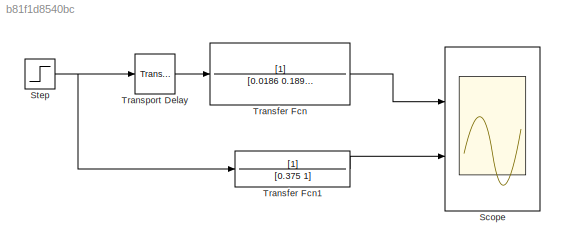
MODEL slx_b81f1d8540bc
KIND model
CONFIG AbsTol = auto
CONFIG EnableMultiTasking = off
CONFIG FixedStep = 1e-2
CONFIG MaxStep = auto
CONFIG MinStep = auto
CONFIG RelTol = 1e-3
CONFIG SampleTimeConstraint = Unconstrained
CONFIG Solver = FixedStepAuto
CONFIG SolverName = FixedStepAuto
CONFIG StartTime = 0.0
CONFIG StopTime = 10.0
BLOCK [Scope] Scope
  NumInputPorts = 2
  Ports = [2]
  ScopeSpecificationString = Simulink.scopes.TimeScopeBlockCfg('CurrentConfiguration', extmgr.ConfigurationSet(extmgr.Configuration('Core','General UI',true),extmgr.Configuration('Core','Source UI',true),extmgr.Configuration('Sources','WiredSimulink',true),extmgr.Configuration('Visuals','Time Domain',true,'SerializedDisplays',{struct('MinYLimReal','-0.13105','MaxYLimReal','1.17944','YLabelReal','','MinYLimMag','0.00000','MaxY...<+1406ch>
BLOCK [Step] Step
  SampleTime = 0
BLOCK [TransferFcn] Transfer Fcn
  Denominator = [0.0186 0.1893 1]
BLOCK [TransferFcn] Transfer Fcn1
  Denominator = [0.375 1]
BLOCK [TransportDelay] Transport Delay
  DelayTime = 0.2
  Ports = [1, 1]
NET Step:1 -> Transfer Fcn1:1, Transport Delay:1
LINE Transfer Fcn1:1 -> Scope:2
LINE Transfer Fcn:1 -> Scope:1
LINE Transport Delay:1 -> Transfer Fcn:1
note: NET lines group one-source signal fan-out (src -> all destinations, sorted); 1:1 wires keep LINE
